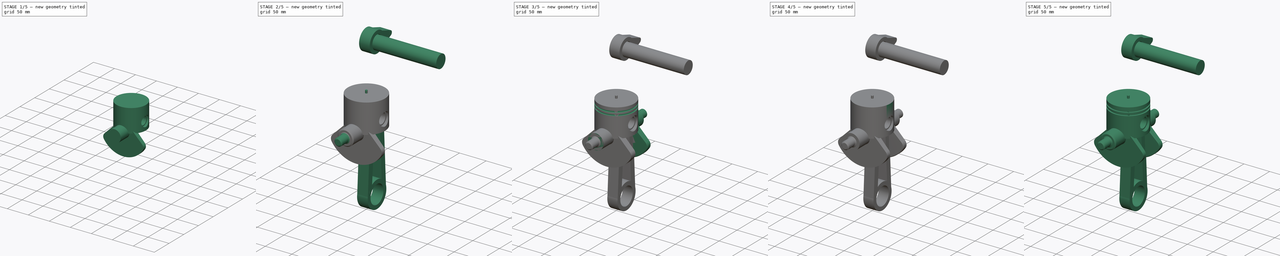
[diagram: build sequence overview — one tinted view per stage of 5, left to right]
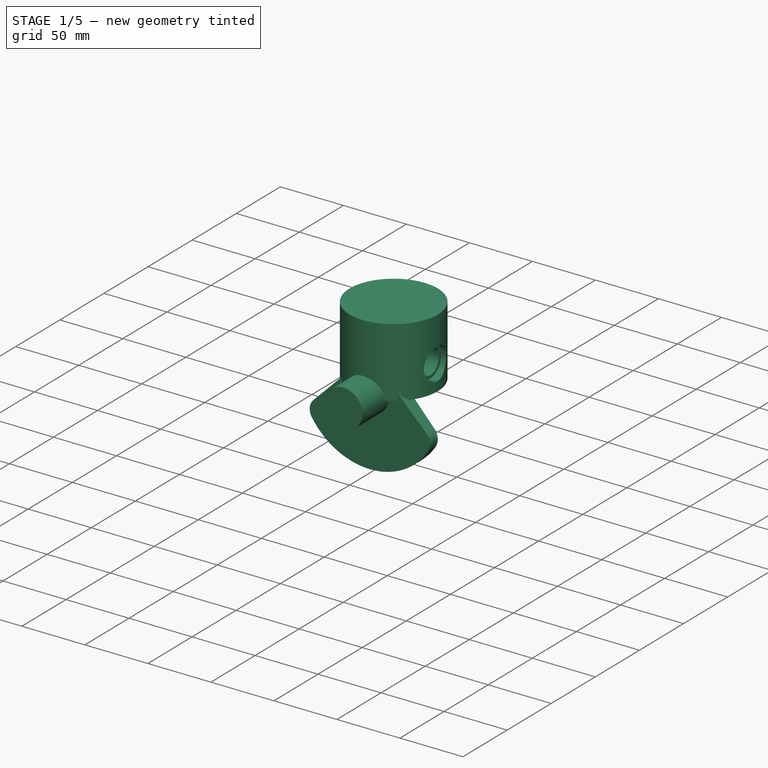
[diagram: stage 1 of 5 — iso view after this stage's code; geometry added in this stage tinted green]
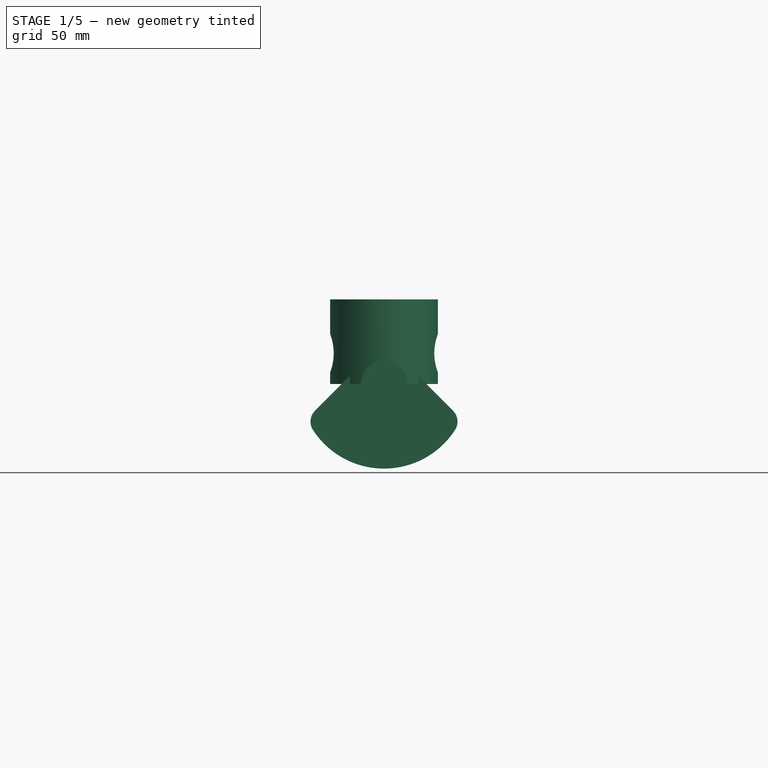
[diagram: stage 1 of 5 — front view after this stage's code; geometry added in this stage tinted green]
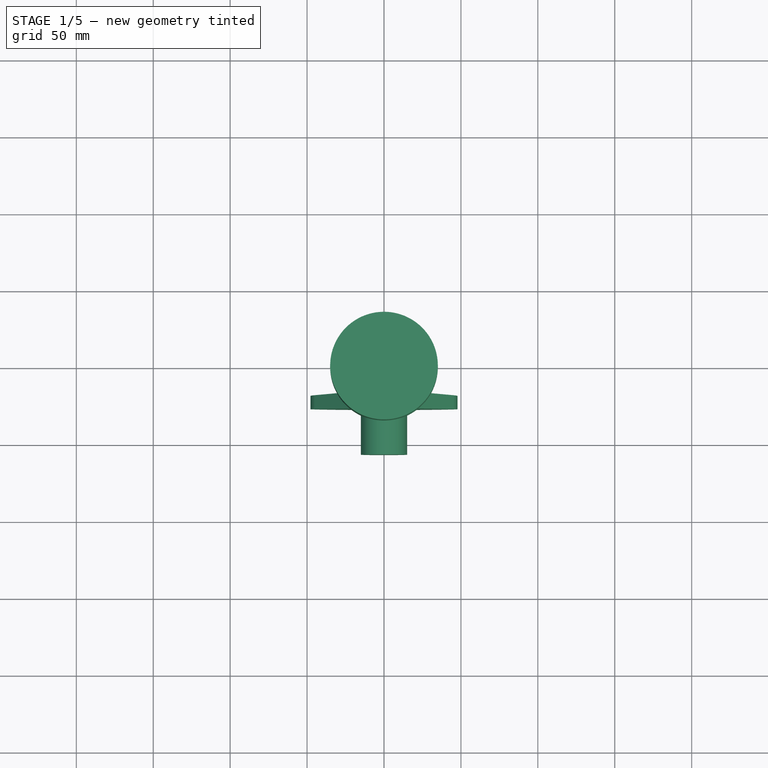
[diagram: stage 1 of 5 — top view after this stage's code; geometry added in this stage tinted green]
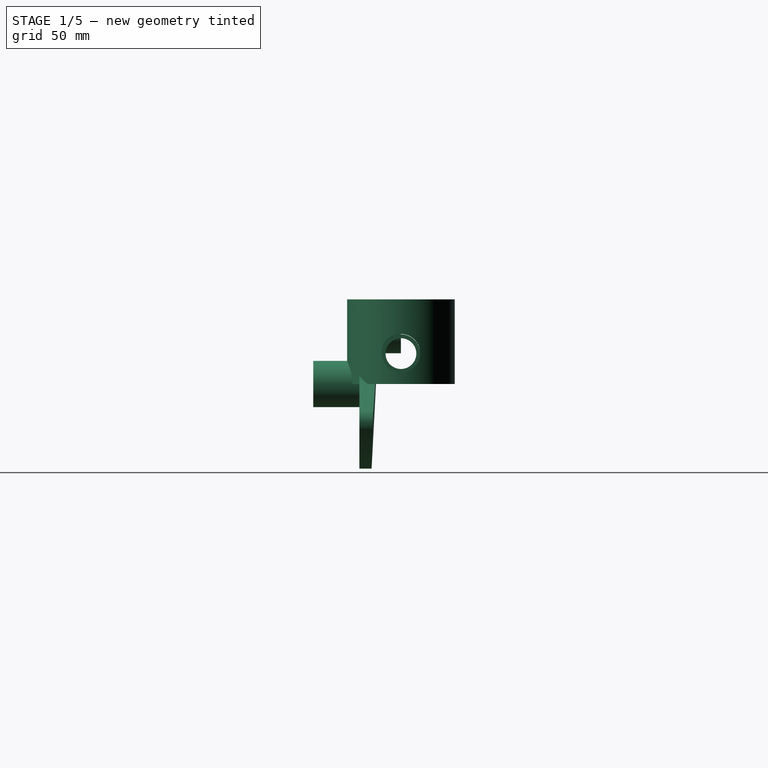
[diagram: stage 1 of 5 — right view after this stage's code; geometry added in this stage tinted green]
FCSTD DOCUMENT  (FreeCAD 0.21R33771 (Git))
Label: Machine Components Design_EngineCylinder
License: All rights reserved
LicenseURL: http://en.wikipedia.org/wiki/All_rights_reserved
objects: Sketcher::SketchObject×30, PartDesign::Pad×22, PartDesign::Body×14, PartDesign::Chamfer×8, PartDesign::Groove×6, PartDesign::Pocket×4, PartDesign::Fillet×4, App::Part×4, PartDesign::Revolution×2, PartDesign::Line×2, PartDesign::Mirrored×2
note: 140 computed .brp shape members not serialized (recipe doc carries the construction recipe); baked Part::Feature solids carry a one-line shape summary decoded from their .brp

FEATURE [PartDesign::Body] Body014
  Group = -> [Sketch032,Pad020,Sketch033,Pad021]
  Origin = -> Origin017
  Placement = pos=(0,0,60) rot=(0,0,1;0rad)
  Tip = -> Pad021
FEATURE [App::Part] Part003
  Group = -> [Body013,Body014,Body011,Body012]
  Origin = -> Origin018
FEATURE [App::Part] Part002
  Group = -> [Body008,Body009,Body010,Part003]
  Origin = -> Origin013
  Placement = pos=(110,0,0) rot=(0,0,1;0rad)
FEATURE [Sketcher::SketchObject] Sketch034
  FullyConstrained = true
  MapMode = 5
  Placement = pos=(0,0,0) rot=(1,0,0;1.5708rad)
  Support = -> [XZ_Plane019]
  sketch-geometry (6):
    g0: LineSegment StartX=0 StartY=55 StartZ=0 EndX=0 EndY=45 EndZ=0
    g1: LineSegment StartX=0 StartY=45 StartZ=0 EndX=25 EndY=45 EndZ=0
    g2: LineSegment StartX=25 StartY=45 StartZ=0 EndX=25 EndY=0 EndZ=0
    g3: LineSegment StartX=25 StartY=0 StartZ=0 EndX=35 EndY=0 EndZ=0
    g4: LineSegment StartX=35 StartY=0 StartZ=0 EndX=35 EndY=55 EndZ=0
    g5: LineSegment StartX=35 StartY=55 StartZ=0 EndX=0 EndY=55 EndZ=0
  constraints (18):
    c: Vertical(g0)
    c: Coincident(g0,g1)
    c: Horizontal(g1)
    c: Coincident(g1,g2)
    c: Vertical(g2)
    c: Coincident(g2,g3)
    c: Horizontal(g3)
    c: Coincident(g3,g4)
    c: Vertical(g4)
    c: Coincident(g4,g5)
    c: Coincident(g5,g0)
    c: Horizontal(g5)
    c: PointOnObject(g0,g-2)
    c: PointOnObject(g2,g-1)
    c: Distance(g2,g3) = 10
    c: Distance(g0,g0) = 10
    c: Distance(g-1,g3) = 35
    c: Distance(g0,g-1) = 55
FEATURE [PartDesign::Revolution] Revolution002
  Angle = 360
  Axis = (0,2e-16,1)
  Base = (0,0,0)
  Placement = pos=(0,0,0) rot=(1,0,0;1.5708rad)
  Profile = -> Sketch034
  ReferenceAxis = -> Sketch034 [V_Axis]
  Reversed = true
FEATURE [Sketcher::SketchObject] Sketch035
  FullyConstrained = true
  MapMode = 5
  Placement = pos=(0,0,0) rot=(0.57735,0.57735,0.57735;2.0944rad)
  Support = -> [YZ_Plane019]
  sketch-geometry (1):
    g0: Circle CenterX=0 CenterY=20 CenterZ=0 NormalX=0 NormalY=0 NormalZ=1 AngleXU=0 Radius=12.5
  constraints (3):
    c: PointOnObject(g0,g-2)
    c: Diameter(g0) = 25
    c: Distance(g0,g-1) = 20
FEATURE [PartDesign::Pocket] Pocket004
  BaseFeature = -> Revolution002
  Direction = (-1,2e-16,-3e-16)
  Length = 86
  Length2 = 5
  Midplane = true
  Placement = pos=(0,0,0) rot=(1,0,0;1.5708rad)
  Profile = -> Sketch035
  ReferenceAxis = -> Sketch035 [N_Axis]
  Type = 0
FEATURE [Sketcher::SketchObject] Sketch037
  FullyConstrained = false
  MapMode = 5
  Placement = pos=(0,0,0) rot=(0.57735,0.57735,0.57735;2.0944rad)
  Support = -> [YZ_Plane019]
  sketch-geometry (2):
    g0: Circle CenterX=0 CenterY=19.761 CenterZ=0 NormalX=0 NormalY=0 NormalZ=1 AngleXU=0 Radius=12.5
    g1: Circle CenterX=0 CenterY=19.761 CenterZ=0 NormalX=0 NormalY=0 NormalZ=1 AngleXU=0 Radius=10
  constraints (4):
    c: PointOnObject(g0,g-2)
    c: Coincident(g1,g0)
    c: Diameter(g0) = 25
    c: Diameter(g1) = 20
FEATURE [PartDesign::Pad] Pad022
  BaseFeature = -> Pocket004
  Direction = (1,-2e-16,3e-16)
  Length = 58
  Length2 = 10
  Midplane = true
  Placement = pos=(0,0,0) rot=(1,0,0;1.5708rad)
  Profile = -> Sketch037
  ReferenceAxis = -> Sketch037 [N_Axis]
  Type = 0
FEATURE [PartDesign::Pocket] Pocket005
  BaseFeature = -> Pad022
  Direction = (-1,2e-16,-3e-16)
  Length = 28
  Length2 = 5
  Midplane = true
  Placement = pos=(0,0,0) rot=(1,0,0;1.5708rad)
  Profile = -> Sketch037
  ReferenceAxis = -> Sketch037 [N_Axis]
  Type = 0
FEATURE [PartDesign::Body] Body016
  Group = -> [Sketch040,Pad023]
  Origin = -> Origin020
  Placement = pos=(-10,0,0) rot=(0,0,1;0rad)
  Tip = -> Pad023
FEATURE [Sketcher::SketchObject] Sketch041
  FullyConstrained = true
  MapMode = 5
  Placement = pos=(0,0,0) rot=(1,0,0;1.5708rad)
  Support = -> [XZ_Plane021]
  sketch-geometry (1):
    g0: Circle CenterX=0 CenterY=35 CenterZ=0 NormalX=0 NormalY=0 NormalZ=1 AngleXU=0 Radius=15
  constraints (3):
    c: PointOnObject(g0,g-2)
    c: Diameter(g0) = 30
    c: Distance(g0,g-1) = 35
FEATURE [PartDesign::Pad] Pad024
  Direction = (0,-1,-2e-16)
  Length = 15
  Length2 = 10
  Placement = pos=(0,0,0) rot=(1,0,0;1.5708rad)
  Profile = -> Sketch041
  ReferenceAxis = -> Sketch041 [N_Axis]
  Type = 0
FEATURE [Sketcher::SketchObject] Sketch042
  FullyConstrained = false
  MapMode = 5
  Placement = pos=(0,-15,0) rot=(1,0,0;1.5708rad)
  Support = -> [Pad024]
  sketch-geometry (6):
    g0: ArcOfCircle CenterX=0 CenterY=0 CenterZ=0 NormalX=0 NormalY=0 NormalZ=1 AngleXU=0 Radius=55 StartAngle=3.56562 EndAngle=5.85915
    g1: LineSegment StartX=-20 StartY=7.5 StartZ=0 EndX=-50.1291 EndY=-22.6291 EndZ=0
    g2: LineSegment StartX=-20 StartY=51.2348 StartZ=0 EndX=-20 EndY=7.5 EndZ=0
    g3: LineSegment StartX=20 StartY=51.2348 StartZ=0 EndX=20 EndY=7.5 EndZ=0
    g4: LineSegment StartX=20 StartY=7.5 StartZ=0 EndX=50.1291 EndY=-22.6291 EndZ=0
    g5: ArcOfCircle CenterX=0 CenterY=0 CenterZ=0 NormalX=0 NormalY=0 NormalZ=1 AngleXU=0 Radius=55 StartAngle=1.19863 EndAngle=1.94296
  constraints (12):
    c: Coincident(g0,g-1)
    c: Vertical(g2)
    c: Angle(g1,g-2) = 0.785398
    c: Vertical(g3)
    c: Coincident(g5,g2)
    c: Coincident(g1,g0)
    c: Equal(g0,g5)
    c: Coincident(g0,g4)
    c: Coincident(g5,g3)
    c: Coincident(g0,g5)
    c: Coincident(g2,g1)
    c: Coincident(g3,g4)
FEATURE [PartDesign::Pad] Pad025
  BaseFeature = -> Pad024
  Direction = (0,-1,-2e-16)
  Length = 12
  Length2 = 10
  Placement = pos=(0,0,0) rot=(1,0,0;1.5708rad)
  Profile = -> Sketch042
  ReferenceAxis = -> Sketch042 [N_Axis]
  Type = 0
FEATURE [PartDesign::Fillet] Fillet004
  Base = -> Pad025 [Edge8,Edge2,Edge1,Edge5,Edge18,Edge19]
  BaseFeature = -> Pad025
  Placement = pos=(0,0,0) rot=(1,0,0;1.5708rad)
  Radius = 10
  SupportTransform = false
  UseAllEdges = false
FEATURE [Sketcher::SketchObject] Sketch036
  FullyConstrained = true
  MapMode = 5
  Placement = pos=(0,-27,3e-16) rot=(1,0,0;1.5708rad)
  Support = -> [Fillet004]
  sketch-geometry (1):
    g0: Circle CenterX=0 CenterY=0 CenterZ=0 NormalX=0 NormalY=0 NormalZ=1 AngleXU=0 Radius=15
  constraints (2):
    c: Coincident(g0,g-1)
    c: Diameter(g0) = 30
FEATURE [PartDesign::Pad] Pad026
  BaseFeature = -> Fillet004
  Direction = (0,-1,-2e-16)
  Length = 30
  Length2 = 10
  Placement = pos=(0,0,0) rot=(1,0,0;1.5708rad)
  Profile = -> Sketch036
  ReferenceAxis = -> Sketch036 [N_Axis]
  Type = 0
FEATURE [PartDesign::Groove] Groove007
  Angle = 360
  Axis = (-2e-16,3e-16,1)
  Base = (0,0,0)
  BaseFeature = -> Pad026
  Placement = pos=(0,0,0) rot=(1,0,0;1.5708rad)
  Profile = -> Sketch038
  ReferenceAxis = -> Sketch038 [V_Axis]
  Reversed = true
FEATURE [PartDesign::Line] DatumLine002
  AttacherType = Attacher::AttachEngineLine
  Length = 20
  MapMode = 42
  Placement = pos=(-1.8e-15,1e-16,35) rot=(0,0.707107,0.707107;3.14159rad)
  ResizeMode = 0
  Support = -> [Groove007]
FEATURE [PartDesign::Groove] Groove008
  Angle = 360
  Axis = (0,1,2e-16)
  Base = (-1.8e-15,-7.8e-15,35)
  BaseFeature = -> Groove007
  Placement = pos=(0,0,0) rot=(1,0,0;1.5708rad)
  Profile = -> Sketch038
  ReferenceAxis = -> DatumLine002
  Reversed = true
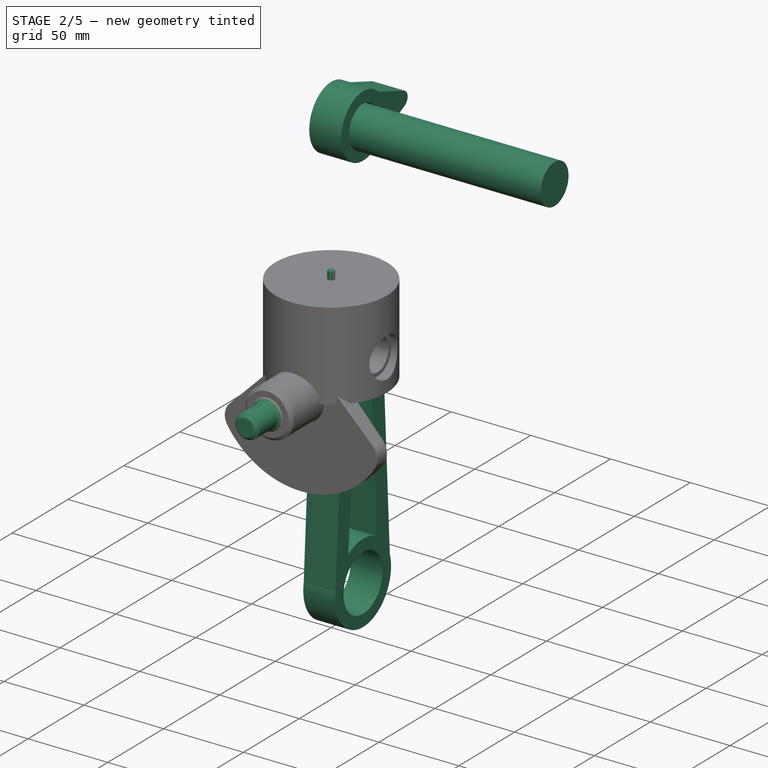
[diagram: stage 2 of 5 — iso view after this stage's code; geometry added in this stage tinted green]
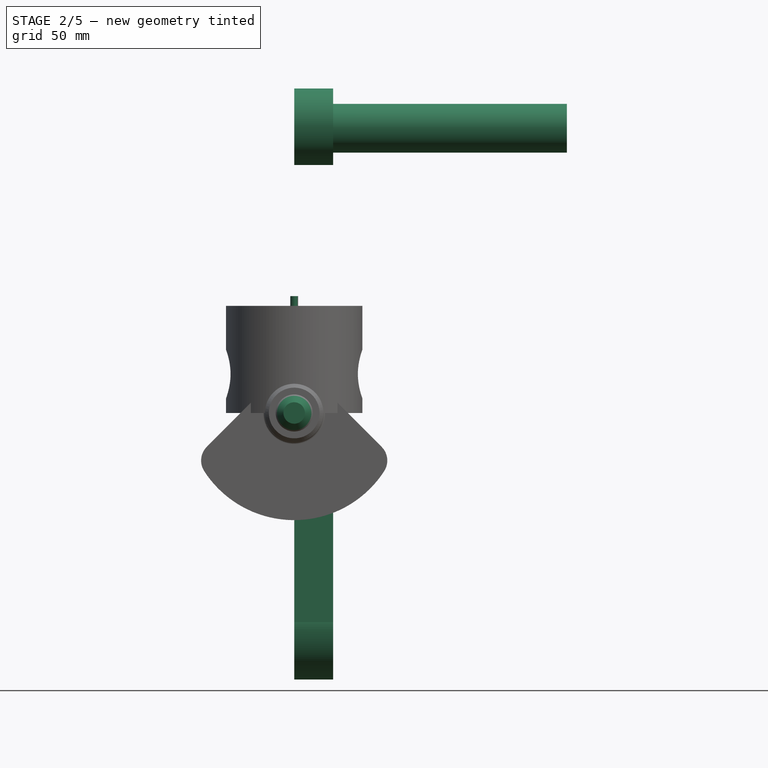
[diagram: stage 2 of 5 — front view after this stage's code; geometry added in this stage tinted green]
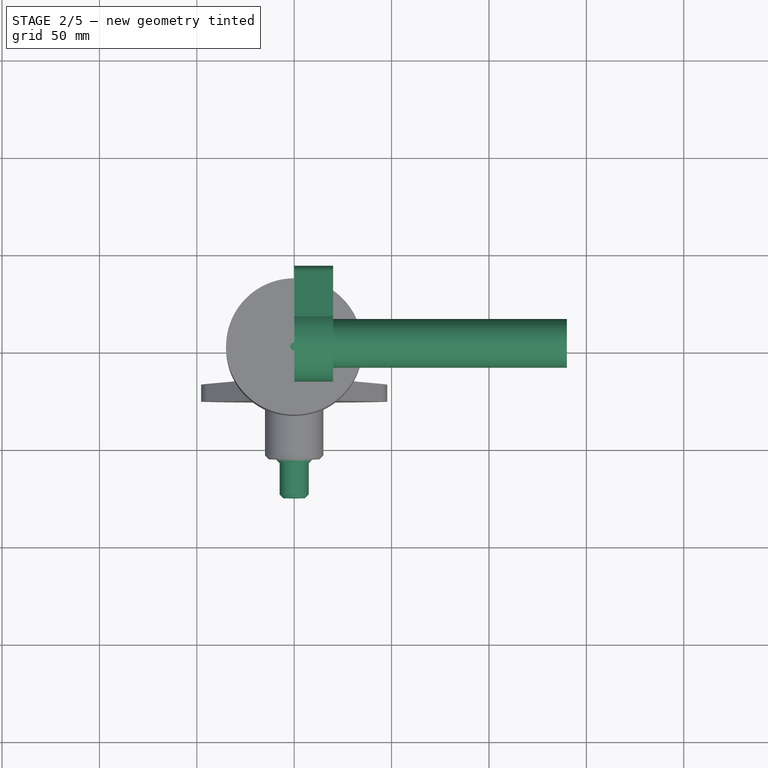
[diagram: stage 2 of 5 — top view after this stage's code; geometry added in this stage tinted green]
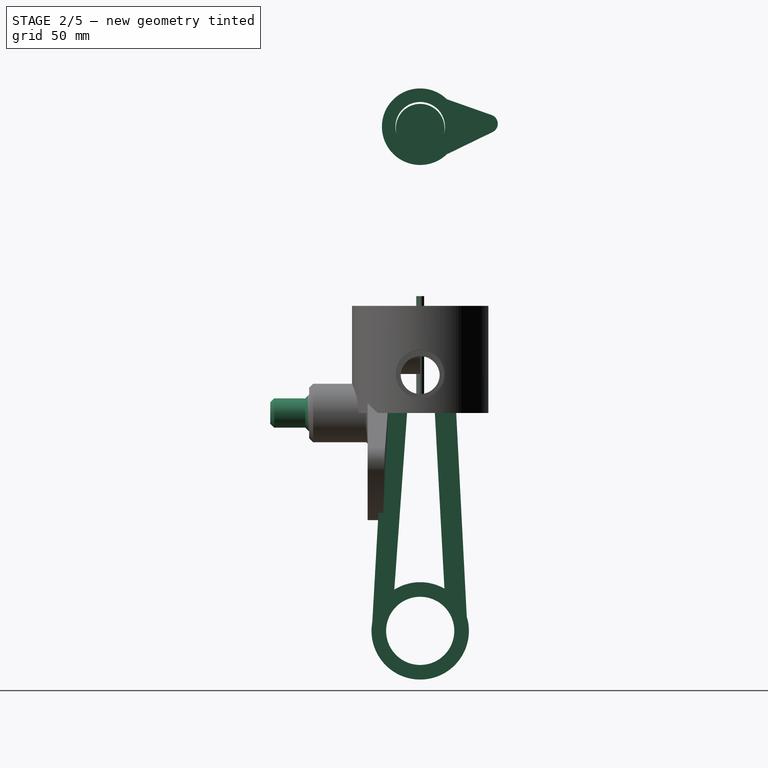
[diagram: stage 2 of 5 — right view after this stage's code; geometry added in this stage tinted green]
FEATURE [PartDesign::Body] Body015
  Group = -> [Sketch034,Revolution002,Sketch035,Pocket004,Sketch037,Pad022,Pocket005,Sketch039,Groove006,Chamfer009,Chamfer010]
  Origin = -> Origin019
  Tip = -> Chamfer010
FEATURE [Sketcher::SketchObject] Sketch040
  FullyConstrained = false
  MapMode = 5
  Placement = pos=(0,0,0) rot=(0.57735,0.57735,0.57735;2.0944rad)
  Support = -> [YZ_Plane020]
  sketch-geometry (10):
    g0: ArcOfCircle CenterX=0 CenterY=19.1543 CenterZ=0 NormalX=0 NormalY=0 NormalZ=1 AngleXU=0 Radius=17.5 StartAngle=0.000699235 EndAngle=3.17195
    g1: Circle CenterX=0 CenterY=19.1543 CenterZ=0 NormalX=0 NormalY=0 NormalZ=1 AngleXU=0 Radius=10
    g2: ArcOfCircle CenterX=0 CenterY=-111.866 CenterZ=0 NormalX=0 NormalY=0 NormalZ=1 AngleXU=0 Radius=25 StartAngle=1.05007 EndAngle=2.13152
    g3: Circle CenterX=0 CenterY=-111.866 CenterZ=0 NormalX=0 NormalY=0 NormalZ=1 AngleXU=0 Radius=17.5
    g4: LineSegment StartX=-17.4919 StartY=18.6231 StartZ=0 EndX=-24.585 EndY=-107.329 EndZ=0
    g5: LineSegment StartX=17.5 StartY=19.1665 StartZ=0 EndX=23.9052 EndY=-104.548 EndZ=0
    g6: LineSegment StartX=-6.51681 StartY=2.91297 StartZ=0 EndX=-13.2949 EndY=-90.6938 EndZ=0
    g7: LineSegment StartX=7.35161 StartY=3.27338 StartZ=0 EndX=12.4377 EndY=-90.1791 EndZ=0
    g8: ArcOfCircle CenterX=0 CenterY=19.1543 CenterZ=0 NormalX=0 NormalY=0 NormalZ=1 AngleXU=0 Radius=17.5 StartAngle=4.33081 EndAngle=5.14594
    g9: ArcOfCircle CenterX=0 CenterY=-111.866 CenterZ=0 NormalX=0 NormalY=0 NormalZ=1 AngleXU=0 Radius=25 StartAngle=2.95912 EndAngle=6.58022
  constraints (20):
    c: PointOnObject(g0,g-2)
    c: Coincident(g1,g0)
    c: PointOnObject(g2,g-2)
    c: Coincident(g3,g2)
    c: Diameter(g1) = 20
    c: Diameter(g0) = 35
    c: Diameter(g3) = 35
    c: Diameter(g2) = 50
    c: Coincident(g8,g7)
    c: Coincident(g0,g5)
    c: Equal(g0,g8)
    c: Coincident(g0,g4)
    c: Coincident(g8,g6)
    c: Coincident(g0,g8)
    c: Coincident(g9,g5)
    c: Coincident(g2,g7)
    c: Equal(g2,g9)
    c: Coincident(g2,g6)
    c: Coincident(g9,g4)
    c: Coincident(g2,g9)
FEATURE [PartDesign::Pad] Pad023
  Direction = (1,-2e-16,3e-16)
  Length = 20
  Length2 = 10
  Placement = pos=(0,0,0) rot=(0.57735,0.57735,0.57735;2.0944rad)
  Profile = -> Sketch040
  ReferenceAxis = -> Sketch040 [N_Axis]
  Type = 0
FEATURE [Sketcher::SketchObject] Sketch043
  FullyConstrained = true
  MapMode = 5
  Placement = pos=(0,-57,-2.7e-15) rot=(1,0,0;1.5708rad)
  Support = -> [Groove008]
  sketch-geometry (1):
    g0: Circle CenterX=0 CenterY=0 CenterZ=0 NormalX=0 NormalY=0 NormalZ=1 AngleXU=0 Radius=7.5
  constraints (2):
    c: Coincident(g0,g-1)
    c: Diameter(g0) = 15
FEATURE [PartDesign::Pad] Pad027
  BaseFeature = -> Groove008
  Direction = (0,-1,-2e-16)
  Length = 20
  Length2 = 10
  Placement = pos=(0,0,0) rot=(1,0,0;1.5708rad)
  Profile = -> Sketch043
  ReferenceAxis = -> Sketch043 [N_Axis]
  Type = 0
FEATURE [PartDesign::Fillet] Fillet005
  Base = -> Pad027 [Edge31]
  BaseFeature = -> Pad027
  Placement = pos=(0,0,0) rot=(1,0,0;1.5708rad)
  Radius = 1
  SupportTransform = false
  UseAllEdges = false
FEATURE [PartDesign::Chamfer] Chamfer011
  Angle = 45
  Base = -> Fillet005 [Edge42,Edge45,Edge51]
  BaseFeature = -> Fillet005
  ChamferType = 0
  FlipDirection = false
  Placement = pos=(0,0,0) rot=(1,0,0;1.5708rad)
  Size = 2
  Size2 = 1
  SupportTransform = false
  UseAllEdges = false
FEATURE [PartDesign::Body] Body017
  Group = -> [Sketch041,Pad024,Sketch042,Pad025,Fillet004,Sketch036,Pad026,Sketch038,Groove007,DatumLine002,Groove008,Sketch043,Pad027,Fillet005,Chamfer011,Chamfer012,Mirrored002]
  Origin = -> Origin021
  Placement = pos=(-2.9e-14,0,-150) rot=(0,0,-1;1.5708rad)
  Tip = -> Mirrored002
FEATURE [Sketcher::SketchObject] Sketch044
  FullyConstrained = false
  MapMode = 5
  Placement = pos=(0,0,0) rot=(0.57735,0.57735,0.57735;2.0944rad)
  Support = -> [YZ_Plane023]
  sketch-geometry (1):
    g0: Circle CenterX=0 CenterY=146.188 CenterZ=0 NormalX=0 NormalY=0 NormalZ=1 AngleXU=0 Radius=12.5
  constraints (1):
    c: Diameter(g0) = 25
FEATURE [PartDesign::Pad] Pad028
  Direction = (1,-2e-16,3e-16)
  Length = 140
  Length2 = 10
  Placement = pos=(0,0,0) rot=(0.57735,0.57735,0.57735;2.0944rad)
  Profile = -> Sketch044
  ReferenceAxis = -> Sketch044 [N_Axis]
  Type = 0
FEATURE [PartDesign::Body] Body018
  Group = -> [Sketch044,Pad028]
  Origin = -> Origin023
  Placement = pos=(-70,0,0) rot=(0,0,1;0rad)
  Tip = -> Pad028
FEATURE [Sketcher::SketchObject] Sketch045
  FullyConstrained = false
  MapMode = 5
  Placement = pos=(0,0,0) rot=(0.57735,0.57735,0.57735;2.0944rad)
  Support = -> [YZ_Plane024]
  sketch-geometry (5):
    g0: Circle CenterX=0 CenterY=146.953 CenterZ=0 NormalX=0 NormalY=0 NormalZ=1 AngleXU=0 Radius=12.7142
    g1: ArcOfCircle CenterX=0 CenterY=146.978 CenterZ=0 NormalX=0 NormalY=0 NormalZ=1 AngleXU=0 Radius=19.6527 StartAngle=0.801394 EndAngle=5.47571
    g2: ArcOfCircle CenterX=35.0826 CenterY=148.499 CenterZ=0 NormalX=0 NormalY=0 NormalZ=1 AngleXU=0 Radius=4.75282 StartAngle=5.16439 EndAngle=7.51469
    g3: LineSegment StartX=13.6725 StartY=161.095 StartZ=0 EndX=36.6645 EndY=152.98 EndZ=0
    g4: LineSegment StartX=13.5864 StartY=132.778 StartZ=0 EndX=37.1585 EndY=144.223 EndZ=0
  constraints (6):
    c: PointOnObject(g0,g-2)
    c: PointOnObject(g1,g-2)
    c: Coincident(g1,g4)
    c: Coincident(g1,g3)
    c: Tangent(g3,g2) = 1.5708
    c: Tangent(g4,g2) = -1.5708
FEATURE [PartDesign::Pad] Pad029
  Direction = (1,-2e-16,3e-16)
  Length = 20
  Length2 = 10
  Placement = pos=(0,0,0) rot=(0.57735,0.57735,0.57735;2.0944rad)
  Profile = -> Sketch045
  ReferenceAxis = -> Sketch045 [N_Axis]
  Type = 0
FEATURE [PartDesign::Body] Body019
  Group = -> [Sketch045,Pad029]
  Origin = -> Origin024
  Placement = pos=(-10,0,0) rot=(0,0,1;0rad)
  Tip = -> Pad029
FEATURE [Sketcher::SketchObject] Sketch046
  FullyConstrained = true
  MapMode = 5
  Support = -> [XY_Plane025]
  sketch-geometry (1):
    g0: Circle CenterX=0 CenterY=0 CenterZ=0 NormalX=0 NormalY=0 NormalZ=1 AngleXU=0 Radius=35
  constraints (2):
    c: Coincident(g0,g-1)
    c: Diameter(g0) = 70
FEATURE [PartDesign::Pad] Pad030
  Direction = (0,0,1)
  Length = 5
  Length2 = 10
  Profile = -> Sketch046
  ReferenceAxis = -> Sketch046 [N_Axis]
  Type = 0
FEATURE [PartDesign::Body] Body020
  Group = -> [Sketch046,Pad030]
  Origin = -> Origin025
  Placement = pos=(0,0,120) rot=(0,0,1;0rad)
  Tip = -> Pad030
FEATURE [Sketcher::SketchObject] Sketch047
  FullyConstrained = false
  MapMode = 5
  Support = -> [XY_Plane026]
  sketch-geometry (1):
    g0: Circle CenterX=0 CenterY=0 CenterZ=0 NormalX=0 NormalY=0 NormalZ=1 AngleXU=0 Radius=7.62516
FEATURE [PartDesign::Pad] Pad031
  Direction = (0,0,1)
  Length = 1
  Length2 = 10
  Profile = -> Sketch047
  ReferenceAxis = -> Sketch047 [N_Axis]
  Type = 0
FEATURE [Sketcher::SketchObject] Sketch048
  FullyConstrained = true
  MapMode = 5
  Support = -> [XY_Plane026]
  sketch-geometry (1):
    g0: Circle CenterX=0 CenterY=0 CenterZ=0 NormalX=0 NormalY=0 NormalZ=1 AngleXU=0 Radius=2
  constraints (2):
    c: Coincident(g0,g-1)
    c: Diameter(g0) = 4
FEATURE [PartDesign::Pad] Pad032
  BaseFeature = -> Pad031
  Direction = (0,0,1)
  Length = 60
  Length2 = 10
  Profile = -> Sketch048
  ReferenceAxis = -> Sketch048 [N_Axis]
  Type = 0
FEATURE [PartDesign::Body] Body021
  Group = -> [Sketch047,Pad031,Sketch048,Pad032]
  Origin = -> Origin026
  Placement = pos=(0,0,60) rot=(0,0,1;0rad)
  Tip = -> Pad032
FEATURE [App::Part] Part005
  Group = -> [Body020,Body021,Body018,Body019]
  Origin = -> Origin027
FEATURE [App::Part] Part004
  Group = -> [Body015,Body016,Body017,Part005]
  Origin = -> Origin022
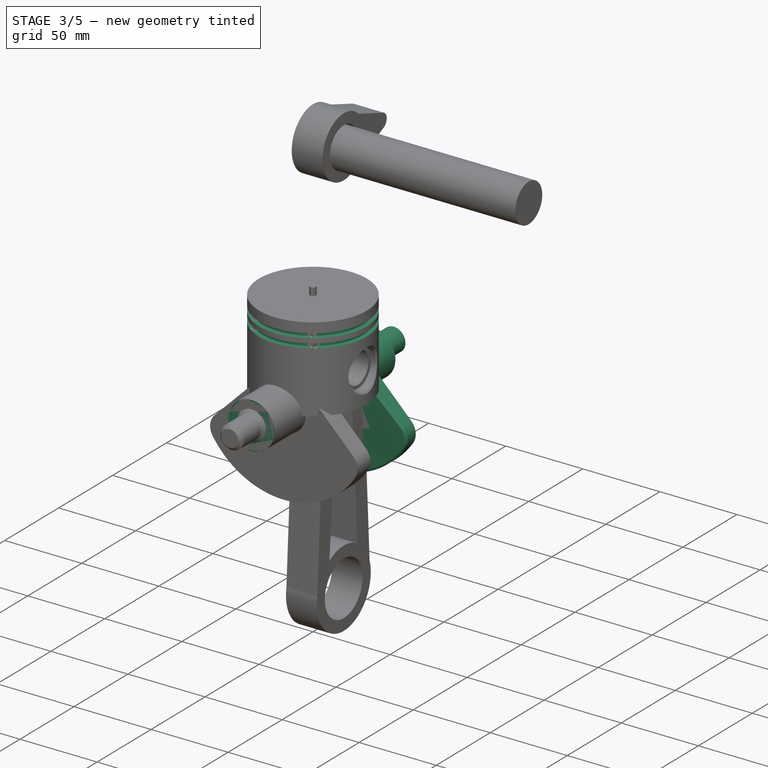
[diagram: stage 3 of 5 — iso view after this stage's code; geometry added in this stage tinted green]
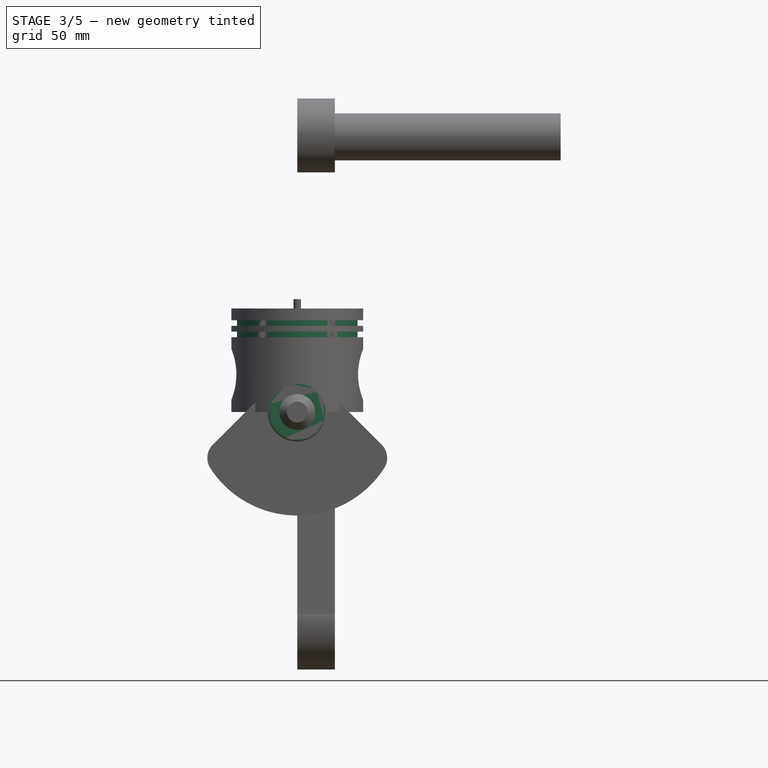
[diagram: stage 3 of 5 — front view after this stage's code; geometry added in this stage tinted green]
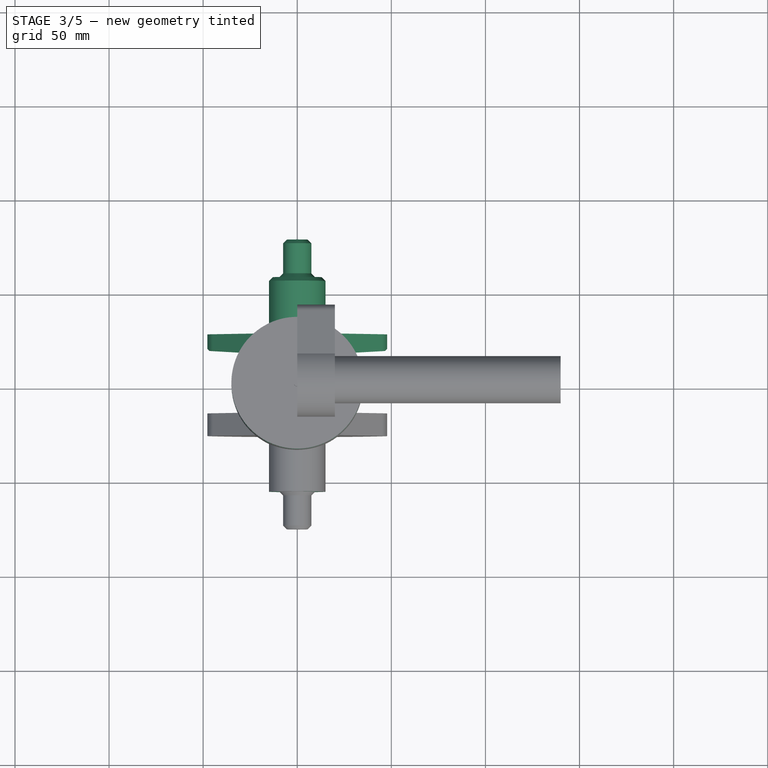
[diagram: stage 3 of 5 — top view after this stage's code; geometry added in this stage tinted green]
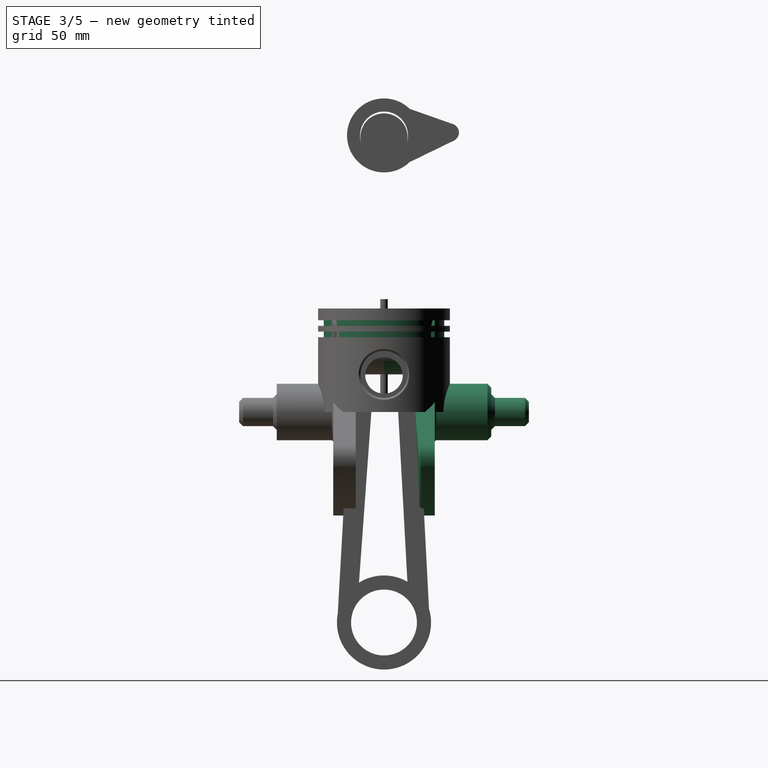
[diagram: stage 3 of 5 — right view after this stage's code; geometry added in this stage tinted green]
FEATURE [PartDesign::Body] Body009
  Group = -> [Sketch025,Pad012]
  Origin = -> Origin011
  Placement = pos=(-10,0,0) rot=(0,0,1;0rad)
  Tip = -> Pad012
FEATURE [Sketcher::SketchObject] Sketch026
  FullyConstrained = true
  MapMode = 5
  Placement = pos=(0,0,0) rot=(1,0,0;1.5708rad)
  Support = -> [XZ_Plane012]
  sketch-geometry (1):
    g0: Circle CenterX=0 CenterY=35 CenterZ=0 NormalX=0 NormalY=0 NormalZ=1 AngleXU=0 Radius=15
  constraints (3):
    c: PointOnObject(g0,g-2)
    c: Diameter(g0) = 30
    c: Distance(g0,g-1) = 35
FEATURE [PartDesign::Pad] Pad013
  Direction = (0,-1,-2e-16)
  Length = 15
  Length2 = 10
  Placement = pos=(0,0,0) rot=(1,0,0;1.5708rad)
  Profile = -> Sketch026
  ReferenceAxis = -> Sketch026 [N_Axis]
  Type = 0
FEATURE [Sketcher::SketchObject] Sketch027
  FullyConstrained = false
  MapMode = 5
  Placement = pos=(0,-15,0) rot=(1,0,0;1.5708rad)
  Support = -> [Pad013]
  sketch-geometry (6):
    g0: ArcOfCircle CenterX=0 CenterY=0 CenterZ=0 NormalX=0 NormalY=0 NormalZ=1 AngleXU=0 Radius=55 StartAngle=3.56562 EndAngle=5.85915
    g1: LineSegment StartX=-20 StartY=7.5 StartZ=0 EndX=-50.1291 EndY=-22.6291 EndZ=0
    g2: LineSegment StartX=-20 StartY=51.2348 StartZ=0 EndX=-20 EndY=7.5 EndZ=0
    g3: LineSegment StartX=20 StartY=51.2348 StartZ=0 EndX=20 EndY=7.5 EndZ=0
    g4: LineSegment StartX=20 StartY=7.5 StartZ=0 EndX=50.1291 EndY=-22.6291 EndZ=0
    g5: ArcOfCircle CenterX=0 CenterY=0 CenterZ=0 NormalX=0 NormalY=0 NormalZ=1 AngleXU=0 Radius=55 StartAngle=1.19863 EndAngle=1.94296
  constraints (12):
    c: Coincident(g0,g-1)
    c: Vertical(g2)
    c: Angle(g1,g-2) = 0.785398
    c: Vertical(g3)
    c: Coincident(g5,g2)
    c: Coincident(g1,g0)
    c: Equal(g0,g5)
    c: Coincident(g0,g4)
    c: Coincident(g5,g3)
    c: Coincident(g0,g5)
    c: Coincident(g2,g1)
    c: Coincident(g3,g4)
FEATURE [PartDesign::Pad] Pad014
  BaseFeature = -> Pad013
  Direction = (0,-1,-2e-16)
  Length = 12
  Length2 = 10
  Placement = pos=(0,0,0) rot=(1,0,0;1.5708rad)
  Profile = -> Sketch027
  ReferenceAxis = -> Sketch027 [N_Axis]
  Type = 0
FEATURE [PartDesign::Fillet] Fillet002
  Base = -> Pad014 [Edge8,Edge2,Edge1,Edge5,Edge18,Edge19]
  BaseFeature = -> Pad014
  Placement = pos=(0,0,0) rot=(1,0,0;1.5708rad)
  Radius = 10
  SupportTransform = false
  UseAllEdges = false
FEATURE [Sketcher::SketchObject] Sketch021
  FullyConstrained = true
  MapMode = 5
  Placement = pos=(0,-27,3e-16) rot=(1,0,0;1.5708rad)
  Support = -> [Fillet002]
  sketch-geometry (1):
    g0: Circle CenterX=0 CenterY=0 CenterZ=0 NormalX=0 NormalY=0 NormalZ=1 AngleXU=0 Radius=15
  constraints (2):
    c: Coincident(g0,g-1)
    c: Diameter(g0) = 30
FEATURE [PartDesign::Pad] Pad015
  BaseFeature = -> Fillet002
  Direction = (0,-1,-2e-16)
  Length = 30
  Length2 = 10
  Placement = pos=(0,0,0) rot=(1,0,0;1.5708rad)
  Profile = -> Sketch021
  ReferenceAxis = -> Sketch021 [N_Axis]
  Type = 0
FEATURE [PartDesign::Groove] Groove004
  Angle = 360
  Axis = (-2e-16,3e-16,1)
  Base = (0,0,0)
  BaseFeature = -> Pad015
  Placement = pos=(0,0,0) rot=(1,0,0;1.5708rad)
  Profile = -> Sketch023
  ReferenceAxis = -> Sketch023 [V_Axis]
  Reversed = true
FEATURE [Sketcher::SketchObject] Sketch038
  FullyConstrained = false
  MapMode = 5
  Placement = pos=(0,0,0) rot=(0.57735,0.57735,0.57735;2.0944rad)
  Support = -> [YZ_Plane021]
  sketch-geometry (3):
    g0: LineSegment StartX=-15 StartY=22.7208 StartZ=0 EndX=-15 EndY=-69.2292 EndZ=0
    g1: LineSegment StartX=-15 StartY=-69.2292 StartZ=0 EndX=-19.8189 EndY=-69.2292 EndZ=0
    g2: LineSegment StartX=-19.8189 StartY=-69.2292 StartZ=0 EndX=-15 EndY=22.7208 EndZ=0
  constraints (7):
    c: Vertical(g0)
    c: Coincident(g0,g1)
    c: Horizontal(g1)
    c: Coincident(g1,g2)
    c: Coincident(g2,g0)
    c: DistanceX(g0,g-1) = 15
    c: Angle(g2,g0) = 0.0523599
FEATURE [Sketcher::SketchObject] Sketch039
  FullyConstrained = true
  MapMode = 5
  Placement = pos=(0,0,0) rot=(1,0,0;1.5708rad)
  Support = -> [XZ_Plane019]
  sketch-geometry (8):
    g0: LineSegment StartX=32 StartY=42.73 StartZ=0 EndX=35 EndY=42.73 EndZ=0
    g1: LineSegment StartX=35 StartY=42.73 StartZ=0 EndX=35 EndY=39.73 EndZ=0
    g2: LineSegment StartX=35 StartY=39.73 StartZ=0 EndX=32 EndY=39.73 EndZ=0
    g3: LineSegment StartX=32 StartY=39.73 StartZ=0 EndX=32 EndY=42.73 EndZ=0
    g4: LineSegment StartX=32 StartY=48.74 StartZ=0 EndX=35 EndY=48.74 EndZ=0
    g5: LineSegment StartX=35 StartY=48.74 StartZ=0 EndX=35 EndY=45.74 EndZ=0
    g6: LineSegment StartX=35 StartY=45.74 StartZ=0 EndX=32 EndY=45.74 EndZ=0
    g7: LineSegment StartX=32 StartY=45.74 StartZ=0 EndX=32 EndY=48.74 EndZ=0
  constraints (24):
    c: Coincident(g0,g1)
    c: Coincident(g1,g2)
    c: Coincident(g2,g3)
    c: Coincident(g3,g0)
    c: Horizontal(g0)
    c: Horizontal(g2)
    c: Vertical(g1)
    c: Vertical(g3)
    c: Coincident(g4,g5)
    c: Coincident(g5,g6)
    c: Coincident(g6,g7)
    c: Coincident(g7,g4)
    c: Horizontal(g4)
    c: Horizontal(g6)
    c: Vertical(g5)
    c: Vertical(g7)
    c: Distance(g2,g1) = 3
    c: Distance(g0,g1) = 3
    c: Distance(g4,g4) = 3
    c: Distance(g4,g5) = 3
    c: Distance(g6,g-2) = 32
    c: Distance(g2,g-2) = 32
    c: Distance(g6,g-1) = 45.74
    c: Distance(g2,g-1) = 39.73
FEATURE [PartDesign::Groove] Groove006
  Angle = 360
  Axis = (0,-2e-16,1)
  Base = (0,0,0)
  BaseFeature = -> Pocket005
  Placement = pos=(0,0,0) rot=(1,0,0;1.5708rad)
  Profile = -> Sketch039
  ReferenceAxis = -> Sketch039 [V_Axis]
FEATURE [PartDesign::Chamfer] Chamfer009
  Angle = 45
  Base = -> Groove006 [Edge27]
  BaseFeature = -> Groove006
  ChamferType = 0
  FlipDirection = false
  Placement = pos=(0,0,0) rot=(1,0,0;1.5708rad)
  Size = 1
  Size2 = 1
  SupportTransform = false
  UseAllEdges = false
FEATURE [PartDesign::Chamfer] Chamfer010
  Angle = 45
  Base = -> Chamfer009 [Edge28,Edge31,Edge32]
  BaseFeature = -> Chamfer009
  ChamferType = 0
  FlipDirection = false
  Placement = pos=(0,0,0) rot=(1,0,0;1.5708rad)
  Size = 1
  Size2 = 1
  SupportTransform = false
  UseAllEdges = false
FEATURE [PartDesign::Chamfer] Chamfer012
  Angle = 45
  Base = -> Chamfer011 [Edge30]
  BaseFeature = -> Chamfer011
  ChamferType = 0
  FlipDirection = false
  Placement = pos=(0,0,0) rot=(1,0,0;1.5708rad)
  Size = 1
  Size2 = 1
  SupportTransform = false
  UseAllEdges = false
FEATURE [PartDesign::Mirrored] Mirrored002
  BaseFeature = -> Chamfer012
  MirrorPlane = -> Chamfer012 [Face36]
  Originals = -> [Pad024,Pad025,Fillet004,Pad026,Groove007,Groove008,Pad027,Fillet005,Chamfer011,Chamfer012]
  Placement = pos=(0,0,0) rot=(1,0,0;1.5708rad)
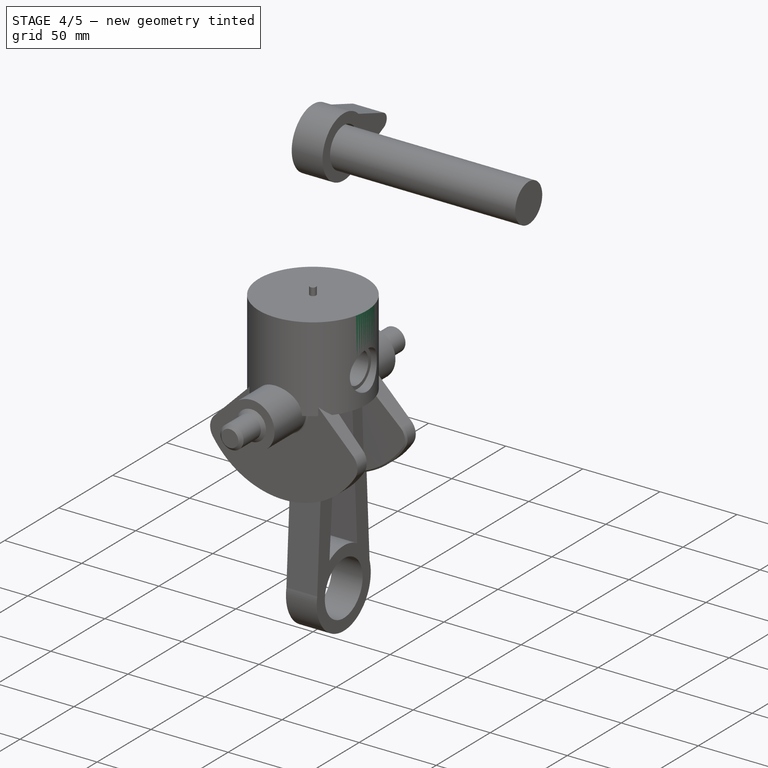
[diagram: stage 4 of 5 — iso view after this stage's code; geometry added in this stage tinted green]
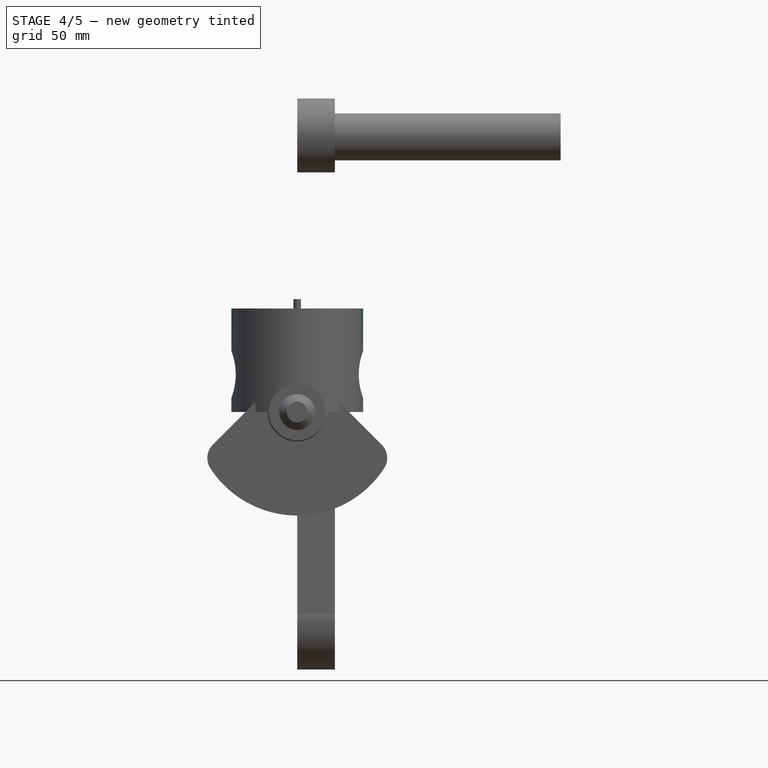
[diagram: stage 4 of 5 — front view after this stage's code; geometry added in this stage tinted green]
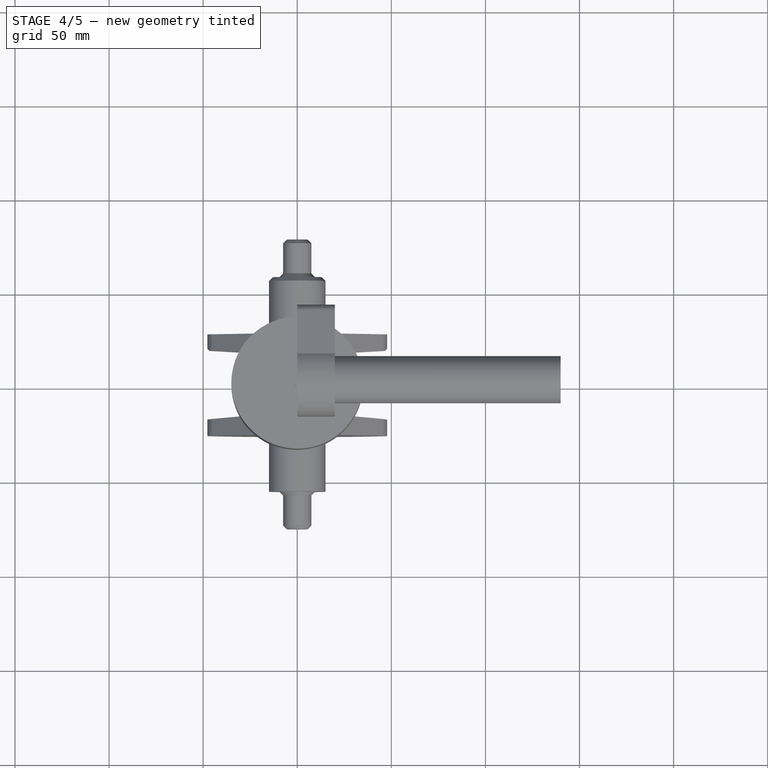
[diagram: stage 4 of 5 — top view after this stage's code; geometry added in this stage tinted green]
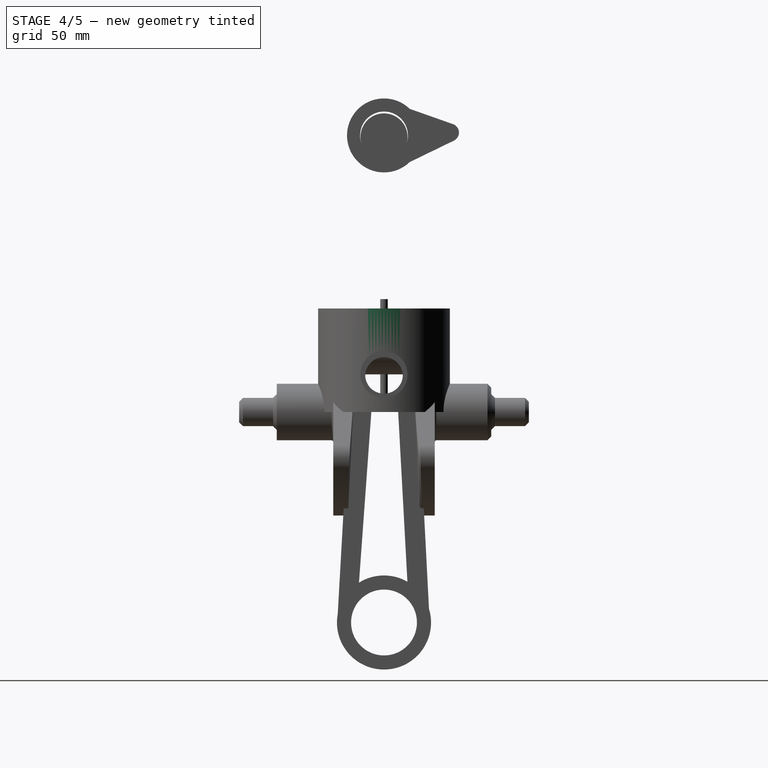
[diagram: stage 4 of 5 — right view after this stage's code; geometry added in this stage tinted green]
FEATURE [Sketcher::SketchObject] Sketch019
  FullyConstrained = true
  MapMode = 5
  Placement = pos=(0,0,0) rot=(1,0,0;1.5708rad)
  Support = -> [XZ_Plane010]
  sketch-geometry (6):
    g0: LineSegment StartX=0 StartY=55 StartZ=0 EndX=0 EndY=45 EndZ=0
    g1: LineSegment StartX=0 StartY=45 StartZ=0 EndX=25 EndY=45 EndZ=0
    g2: LineSegment StartX=25 StartY=45 StartZ=0 EndX=25 EndY=0 EndZ=0
    g3: LineSegment StartX=25 StartY=0 StartZ=0 EndX=35 EndY=0 EndZ=0
    g4: LineSegment StartX=35 StartY=0 StartZ=0 EndX=35 EndY=55 EndZ=0
    g5: LineSegment StartX=35 StartY=55 StartZ=0 EndX=0 EndY=55 EndZ=0
  constraints (18):
    c: Vertical(g0)
    c: Coincident(g0,g1)
    c: Horizontal(g1)
    c: Coincident(g1,g2)
    c: Vertical(g2)
    c: Coincident(g2,g3)
    c: Horizontal(g3)
    c: Coincident(g3,g4)
    c: Vertical(g4)
    c: Coincident(g4,g5)
    c: Coincident(g5,g0)
    c: Horizontal(g5)
    c: PointOnObject(g0,g-2)
    c: PointOnObject(g2,g-1)
    c: Distance(g2,g3) = 10
    c: Distance(g0,g0) = 10
    c: Distance(g-1,g3) = 35
    c: Distance(g0,g-1) = 55
FEATURE [PartDesign::Revolution] Revolution001
  Angle = 360
  Axis = (0,2e-16,1)
  Base = (0,0,0)
  Placement = pos=(0,0,0) rot=(1,0,0;1.5708rad)
  Profile = -> Sketch019
  ReferenceAxis = -> Sketch019 [V_Axis]
  Reversed = true
FEATURE [Sketcher::SketchObject] Sketch020
  FullyConstrained = true
  MapMode = 5
  Placement = pos=(0,0,0) rot=(0.57735,0.57735,0.57735;2.0944rad)
  Support = -> [YZ_Plane010]
  sketch-geometry (1):
    g0: Circle CenterX=0 CenterY=20 CenterZ=0 NormalX=0 NormalY=0 NormalZ=1 AngleXU=0 Radius=12.5
  constraints (3):
    c: PointOnObject(g0,g-2)
    c: Diameter(g0) = 25
    c: Distance(g0,g-1) = 20
FEATURE [PartDesign::Pocket] Pocket002
  BaseFeature = -> Revolution001
  Direction = (-1,2e-16,-3e-16)
  Length = 86
  Length2 = 5
  Midplane = true
  Placement = pos=(0,0,0) rot=(1,0,0;1.5708rad)
  Profile = -> Sketch020
  ReferenceAxis = -> Sketch020 [N_Axis]
  Type = 0
FEATURE [Sketcher::SketchObject] Sketch022
  FullyConstrained = false
  MapMode = 5
  Placement = pos=(0,0,0) rot=(0.57735,0.57735,0.57735;2.0944rad)
  Support = -> [YZ_Plane010]
  sketch-geometry (2):
    g0: Circle CenterX=0 CenterY=19.761 CenterZ=0 NormalX=0 NormalY=0 NormalZ=1 AngleXU=0 Radius=12.5
    g1: Circle CenterX=0 CenterY=19.761 CenterZ=0 NormalX=0 NormalY=0 NormalZ=1 AngleXU=0 Radius=10
  constraints (4):
    c: PointOnObject(g0,g-2)
    c: Coincident(g1,g0)
    c: Diameter(g0) = 25
    c: Diameter(g1) = 20
FEATURE [PartDesign::Pad] Pad011
  BaseFeature = -> Pocket002
  Direction = (1,-2e-16,3e-16)
  Length = 58
  Length2 = 10
  Midplane = true
  Placement = pos=(0,0,0) rot=(1,0,0;1.5708rad)
  Profile = -> Sketch022
  ReferenceAxis = -> Sketch022 [N_Axis]
  Type = 0
FEATURE [PartDesign::Pocket] Pocket003
  BaseFeature = -> Pad011
  Direction = (-1,2e-16,-3e-16)
  Length = 28
  Length2 = 5
  Midplane = true
  Placement = pos=(0,0,0) rot=(1,0,0;1.5708rad)
  Profile = -> Sketch022
  ReferenceAxis = -> Sketch022 [N_Axis]
  Type = 0
FEATURE [PartDesign::Line] DatumLine001
  AttacherType = Attacher::AttachEngineLine
  Length = 20
  MapMode = 42
  Placement = pos=(-1.8e-15,1e-16,35) rot=(0,0.707107,0.707107;3.14159rad)
  ResizeMode = 0
  Support = -> [Groove004]
FEATURE [PartDesign::Groove] Groove005
  Angle = 360
  Axis = (0,1,2e-16)
  Base = (-1.8e-15,-7.8e-15,35)
  BaseFeature = -> Groove004
  Placement = pos=(0,0,0) rot=(1,0,0;1.5708rad)
  Profile = -> Sketch023
  ReferenceAxis = -> DatumLine001
  Reversed = true
FEATURE [PartDesign::Body] Body011
  Group = -> [Sketch029,Pad017]
  Origin = -> Origin014
  Placement = pos=(-70,0,0) rot=(0,0,1;0rad)
  Tip = -> Pad017
FEATURE [Sketcher::SketchObject] Sketch030
  FullyConstrained = false
  MapMode = 5
  Placement = pos=(0,0,0) rot=(0.57735,0.57735,0.57735;2.0944rad)
  Support = -> [YZ_Plane015]
  sketch-geometry (5):
    g0: Circle CenterX=0 CenterY=146.953 CenterZ=0 NormalX=0 NormalY=0 NormalZ=1 AngleXU=0 Radius=12.7142
    g1: ArcOfCircle CenterX=0 CenterY=146.978 CenterZ=0 NormalX=0 NormalY=0 NormalZ=1 AngleXU=0 Radius=19.6527 StartAngle=0.801394 EndAngle=5.47571
    g2: ArcOfCircle CenterX=35.0826 CenterY=148.499 CenterZ=0 NormalX=0 NormalY=0 NormalZ=1 AngleXU=0 Radius=4.75282 StartAngle=5.16439 EndAngle=7.51469
    g3: LineSegment StartX=13.6725 StartY=161.095 StartZ=0 EndX=36.6645 EndY=152.98 EndZ=0
    g4: LineSegment StartX=13.5864 StartY=132.778 StartZ=0 EndX=37.1585 EndY=144.223 EndZ=0
  constraints (6):
    c: PointOnObject(g0,g-2)
    c: PointOnObject(g1,g-2)
    c: Coincident(g1,g4)
    c: Coincident(g1,g3)
    c: Tangent(g3,g2) = 1.5708
    c: Tangent(g4,g2) = -1.5708
FEATURE [PartDesign::Pad] Pad018
  Direction = (1,-2e-16,3e-16)
  Length = 20
  Length2 = 10
  Placement = pos=(0,0,0) rot=(0.57735,0.57735,0.57735;2.0944rad)
  Profile = -> Sketch030
  ReferenceAxis = -> Sketch030 [N_Axis]
  Type = 0
FEATURE [PartDesign::Body] Body012
  Group = -> [Sketch030,Pad018]
  Origin = -> Origin015
  Placement = pos=(-10,0,0) rot=(0,0,1;0rad)
  Tip = -> Pad018
FEATURE [Sketcher::SketchObject] Sketch031
  FullyConstrained = true
  MapMode = 5
  Support = -> [XY_Plane016]
  sketch-geometry (1):
    g0: Circle CenterX=0 CenterY=0 CenterZ=0 NormalX=0 NormalY=0 NormalZ=1 AngleXU=0 Radius=35
  constraints (2):
    c: Coincident(g0,g-1)
    c: Diameter(g0) = 70
FEATURE [PartDesign::Pad] Pad019
  Direction = (0,0,1)
  Length = 5
  Length2 = 10
  Profile = -> Sketch031
  ReferenceAxis = -> Sketch031 [N_Axis]
  Type = 0
FEATURE [PartDesign::Body] Body013
  Group = -> [Sketch031,Pad019]
  Origin = -> Origin016
  Placement = pos=(0,0,120) rot=(0,0,1;0rad)
  Tip = -> Pad019
FEATURE [Sketcher::SketchObject] Sketch032
  FullyConstrained = false
  MapMode = 5
  Support = -> [XY_Plane017]
  sketch-geometry (1):
    g0: Circle CenterX=0 CenterY=0 CenterZ=0 NormalX=0 NormalY=0 NormalZ=1 AngleXU=0 Radius=7.62516
FEATURE [PartDesign::Pad] Pad020
  Direction = (0,0,1)
  Length = 1
  Length2 = 10
  Profile = -> Sketch032
  ReferenceAxis = -> Sketch032 [N_Axis]
  Type = 0
FEATURE [Sketcher::SketchObject] Sketch033
  FullyConstrained = true
  MapMode = 5
  Support = -> [XY_Plane017]
  sketch-geometry (1):
    g0: Circle CenterX=0 CenterY=0 CenterZ=0 NormalX=0 NormalY=0 NormalZ=1 AngleXU=0 Radius=2
  constraints (2):
    c: Coincident(g0,g-1)
    c: Diameter(g0) = 4
FEATURE [PartDesign::Pad] Pad021
  BaseFeature = -> Pad020
  Direction = (0,0,1)
  Length = 60
  Length2 = 10
  Profile = -> Sketch033
  ReferenceAxis = -> Sketch033 [N_Axis]
  Type = 0
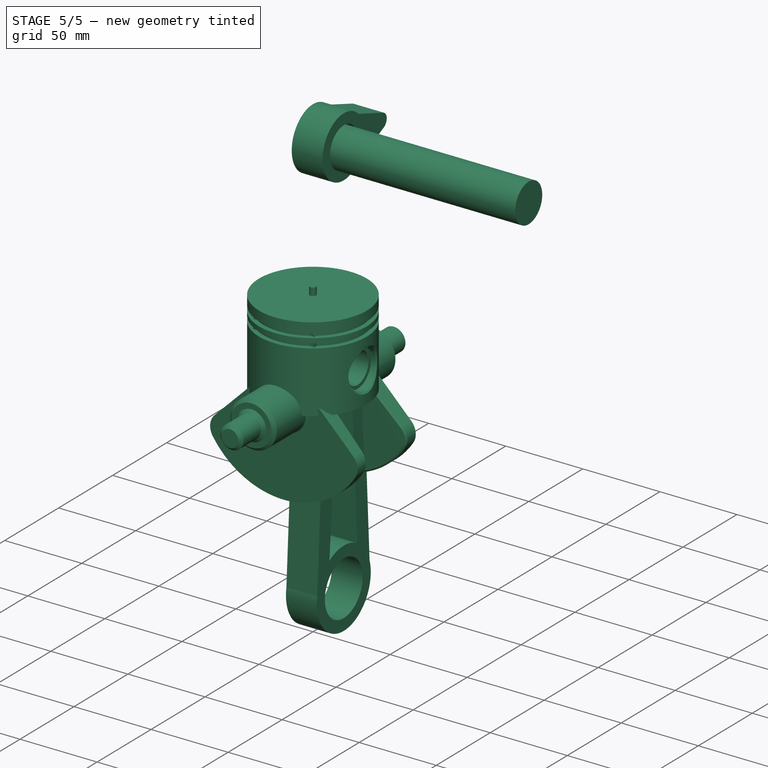
[diagram: stage 5 of 5 — iso view after this stage's code; geometry added in this stage tinted green]
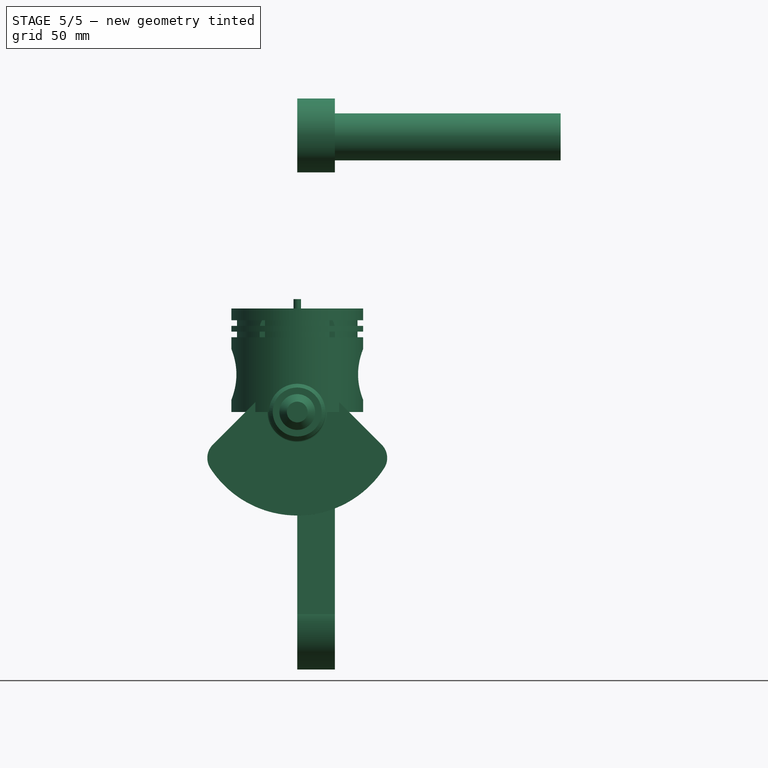
[diagram: stage 5 of 5 — front view after this stage's code; geometry added in this stage tinted green]
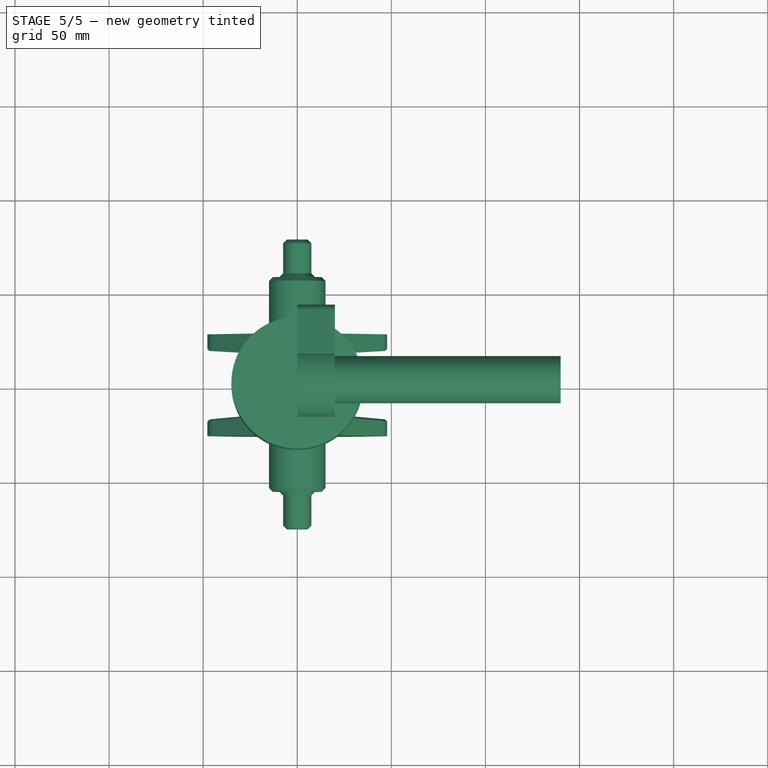
[diagram: stage 5 of 5 — top view after this stage's code; geometry added in this stage tinted green]
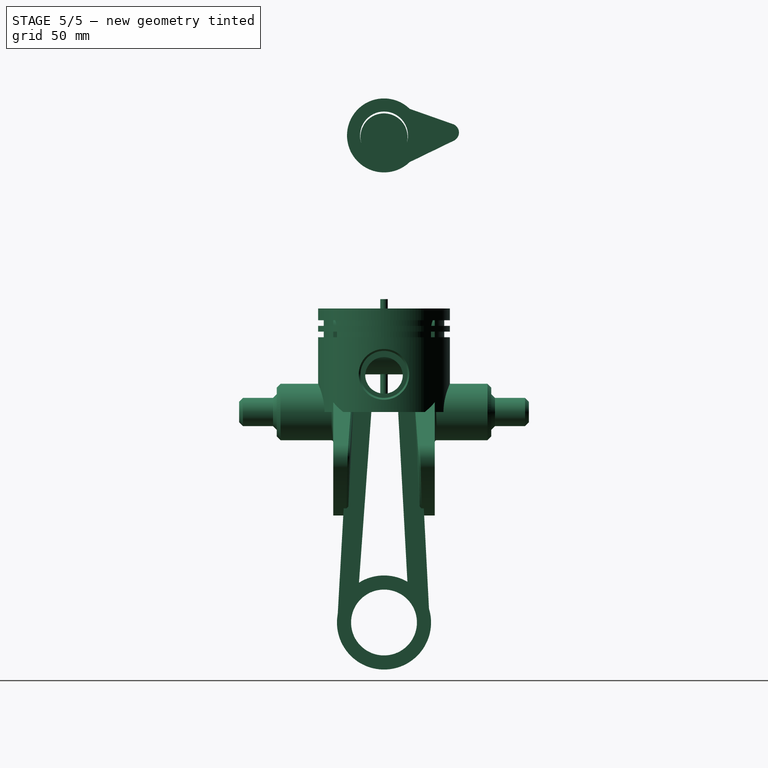
[diagram: stage 5 of 5 — right view after this stage's code; geometry added in this stage tinted green]
FEATURE [Sketcher::SketchObject] Sketch023
  FullyConstrained = false
  MapMode = 5
  Placement = pos=(0,0,0) rot=(0.57735,0.57735,0.57735;2.0944rad)
  Support = -> [YZ_Plane012]
  sketch-geometry (3):
    g0: LineSegment StartX=-15 StartY=22.7208 StartZ=0 EndX=-15 EndY=-69.2292 EndZ=0
    g1: LineSegment StartX=-15 StartY=-69.2292 StartZ=0 EndX=-19.8189 EndY=-69.2292 EndZ=0
    g2: LineSegment StartX=-19.8189 StartY=-69.2292 StartZ=0 EndX=-15 EndY=22.7208 EndZ=0
  constraints (7):
    c: Vertical(g0)
    c: Coincident(g0,g1)
    c: Horizontal(g1)
    c: Coincident(g1,g2)
    c: Coincident(g2,g0)
    c: DistanceX(g0,g-1) = 15
    c: Angle(g2,g0) = 0.0523599
FEATURE [Sketcher::SketchObject] Sketch024
  FullyConstrained = true
  MapMode = 5
  Placement = pos=(0,0,0) rot=(1,0,0;1.5708rad)
  Support = -> [XZ_Plane010]
  sketch-geometry (8):
    g0: LineSegment StartX=32 StartY=42.73 StartZ=0 EndX=35 EndY=42.73 EndZ=0
    g1: LineSegment StartX=35 StartY=42.73 StartZ=0 EndX=35 EndY=39.73 EndZ=0
    g2: LineSegment StartX=35 StartY=39.73 StartZ=0 EndX=32 EndY=39.73 EndZ=0
    g3: LineSegment StartX=32 StartY=39.73 StartZ=0 EndX=32 EndY=42.73 EndZ=0
    g4: LineSegment StartX=32 StartY=48.74 StartZ=0 EndX=35 EndY=48.74 EndZ=0
    g5: LineSegment StartX=35 StartY=48.74 StartZ=0 EndX=35 EndY=45.74 EndZ=0
    g6: LineSegment StartX=35 StartY=45.74 StartZ=0 EndX=32 EndY=45.74 EndZ=0
    g7: LineSegment StartX=32 StartY=45.74 StartZ=0 EndX=32 EndY=48.74 EndZ=0
  constraints (24):
    c: Coincident(g0,g1)
    c: Coincident(g1,g2)
    c: Coincident(g2,g3)
    c: Coincident(g3,g0)
    c: Horizontal(g0)
    c: Horizontal(g2)
    c: Vertical(g1)
    c: Vertical(g3)
    c: Coincident(g4,g5)
    c: Coincident(g5,g6)
    c: Coincident(g6,g7)
    c: Coincident(g7,g4)
    c: Horizontal(g4)
    c: Horizontal(g6)
    c: Vertical(g5)
    c: Vertical(g7)
    c: Distance(g2,g1) = 3
    c: Distance(g0,g1) = 3
    c: Distance(g4,g4) = 3
    c: Distance(g4,g5) = 3
    c: Distance(g6,g-2) = 32
    c: Distance(g2,g-2) = 32
    c: Distance(g6,g-1) = 45.74
    c: Distance(g2,g-1) = 39.73
FEATURE [PartDesign::Groove] Groove003
  Angle = 360
  Axis = (0,-2e-16,1)
  Base = (0,0,0)
  BaseFeature = -> Pocket003
  Placement = pos=(0,0,0) rot=(1,0,0;1.5708rad)
  Profile = -> Sketch024
  ReferenceAxis = -> Sketch024 [V_Axis]
FEATURE [PartDesign::Chamfer] Chamfer005
  Angle = 45
  Base = -> Groove003 [Edge27]
  BaseFeature = -> Groove003
  ChamferType = 0
  FlipDirection = false
  Placement = pos=(0,0,0) rot=(1,0,0;1.5708rad)
  Size = 1
  Size2 = 1
  SupportTransform = false
  UseAllEdges = false
FEATURE [PartDesign::Chamfer] Chamfer006
  Angle = 45
  Base = -> Chamfer005 [Edge28,Edge31,Edge32]
  BaseFeature = -> Chamfer005
  ChamferType = 0
  FlipDirection = false
  Placement = pos=(0,0,0) rot=(1,0,0;1.5708rad)
  Size = 1
  Size2 = 1
  SupportTransform = false
  UseAllEdges = false
FEATURE [PartDesign::Body] Body008
  Group = -> [Sketch019,Revolution001,Sketch020,Pocket002,Sketch022,Pad011,Pocket003,Sketch024,Groove003,Chamfer005,Chamfer006]
  Origin = -> Origin010
  Tip = -> Chamfer006
FEATURE [Sketcher::SketchObject] Sketch025
  FullyConstrained = false
  MapMode = 5
  Placement = pos=(0,0,0) rot=(0.57735,0.57735,0.57735;2.0944rad)
  Support = -> [YZ_Plane011]
  sketch-geometry (10):
    g0: ArcOfCircle CenterX=0 CenterY=19.1543 CenterZ=0 NormalX=0 NormalY=0 NormalZ=1 AngleXU=0 Radius=17.5 StartAngle=0.000699235 EndAngle=3.17195
    g1: Circle CenterX=0 CenterY=19.1543 CenterZ=0 NormalX=0 NormalY=0 NormalZ=1 AngleXU=0 Radius=10
    g2: ArcOfCircle CenterX=0 CenterY=-111.866 CenterZ=0 NormalX=0 NormalY=0 NormalZ=1 AngleXU=0 Radius=25 StartAngle=1.05007 EndAngle=2.13152
    g3: Circle CenterX=0 CenterY=-111.866 CenterZ=0 NormalX=0 NormalY=0 NormalZ=1 AngleXU=0 Radius=17.5
    g4: LineSegment StartX=-17.4919 StartY=18.6231 StartZ=0 EndX=-24.585 EndY=-107.329 EndZ=0
    g5: LineSegment StartX=17.5 StartY=19.1665 StartZ=0 EndX=23.9052 EndY=-104.548 EndZ=0
    g6: LineSegment StartX=-6.51681 StartY=2.91297 StartZ=0 EndX=-13.2949 EndY=-90.6938 EndZ=0
    g7: LineSegment StartX=7.35161 StartY=3.27338 StartZ=0 EndX=12.4377 EndY=-90.1791 EndZ=0
    g8: ArcOfCircle CenterX=0 CenterY=19.1543 CenterZ=0 NormalX=0 NormalY=0 NormalZ=1 AngleXU=0 Radius=17.5 StartAngle=4.33081 EndAngle=5.14594
    g9: ArcOfCircle CenterX=0 CenterY=-111.866 CenterZ=0 NormalX=0 NormalY=0 NormalZ=1 AngleXU=0 Radius=25 StartAngle=2.95912 EndAngle=6.58022
  constraints (20):
    c: PointOnObject(g0,g-2)
    c: Coincident(g1,g0)
    c: PointOnObject(g2,g-2)
    c: Coincident(g3,g2)
    c: Diameter(g1) = 20
    c: Diameter(g0) = 35
    c: Diameter(g3) = 35
    c: Diameter(g2) = 50
    c: Coincident(g8,g7)
    c: Coincident(g0,g5)
    c: Equal(g0,g8)
    c: Coincident(g0,g4)
    c: Coincident(g8,g6)
    c: Coincident(g0,g8)
    c: Coincident(g9,g5)
    c: Coincident(g2,g7)
    c: Equal(g2,g9)
    c: Coincident(g2,g6)
    c: Coincident(g9,g4)
    c: Coincident(g2,g9)
FEATURE [PartDesign::Pad] Pad012
  Direction = (1,-2e-16,3e-16)
  Length = 20
  Length2 = 10
  Placement = pos=(0,0,0) rot=(0.57735,0.57735,0.57735;2.0944rad)
  Profile = -> Sketch025
  ReferenceAxis = -> Sketch025 [N_Axis]
  Type = 0
FEATURE [Sketcher::SketchObject] Sketch028
  FullyConstrained = true
  MapMode = 5
  Placement = pos=(0,-57,-2.7e-15) rot=(1,0,0;1.5708rad)
  Support = -> [Groove005]
  sketch-geometry (1):
    g0: Circle CenterX=0 CenterY=0 CenterZ=0 NormalX=0 NormalY=0 NormalZ=1 AngleXU=0 Radius=7.5
  constraints (2):
    c: Coincident(g0,g-1)
    c: Diameter(g0) = 15
FEATURE [PartDesign::Pad] Pad016
  BaseFeature = -> Groove005
  Direction = (0,-1,-2e-16)
  Length = 20
  Length2 = 10
  Placement = pos=(0,0,0) rot=(1,0,0;1.5708rad)
  Profile = -> Sketch028
  ReferenceAxis = -> Sketch028 [N_Axis]
  Type = 0
FEATURE [PartDesign::Fillet] Fillet003
  Base = -> Pad016 [Edge31]
  BaseFeature = -> Pad016
  Placement = pos=(0,0,0) rot=(1,0,0;1.5708rad)
  Radius = 1
  SupportTransform = false
  UseAllEdges = false
FEATURE [PartDesign::Chamfer] Chamfer007
  Angle = 45
  Base = -> Fillet003 [Edge42,Edge45,Edge51]
  BaseFeature = -> Fillet003
  ChamferType = 0
  FlipDirection = false
  Placement = pos=(0,0,0) rot=(1,0,0;1.5708rad)
  Size = 2
  Size2 = 1
  SupportTransform = false
  UseAllEdges = false
FEATURE [PartDesign::Chamfer] Chamfer008
  Angle = 45
  Base = -> Chamfer007 [Edge30]
  BaseFeature = -> Chamfer007
  ChamferType = 0
  FlipDirection = false
  Placement = pos=(0,0,0) rot=(1,0,0;1.5708rad)
  Size = 1
  Size2 = 1
  SupportTransform = false
  UseAllEdges = false
FEATURE [PartDesign::Mirrored] Mirrored001
  BaseFeature = -> Chamfer008
  MirrorPlane = -> Chamfer008 [Face36]
  Originals = -> [Pad013,Pad014,Fillet002,Pad015,Groove004,Groove005,Pad016,Fillet003,Chamfer007,Chamfer008]
  Placement = pos=(0,0,0) rot=(1,0,0;1.5708rad)
FEATURE [PartDesign::Body] Body010
  Group = -> [Sketch026,Pad013,Sketch027,Pad014,Fillet002,Sketch021,Pad015,Sketch023,Groove004,DatumLine001,Groove005,Sketch028,Pad016,Fillet003,Chamfer007,Chamfer008,Mirrored001]
  Origin = -> Origin012
  Placement = pos=(-2.9e-14,0,-150) rot=(0,0,-1;1.5708rad)
  Tip = -> Mirrored001
FEATURE [Sketcher::SketchObject] Sketch029
  FullyConstrained = false
  MapMode = 5
  Placement = pos=(0,0,0) rot=(0.57735,0.57735,0.57735;2.0944rad)
  Support = -> [YZ_Plane014]
  sketch-geometry (1):
    g0: Circle CenterX=0 CenterY=146.188 CenterZ=0 NormalX=0 NormalY=0 NormalZ=1 AngleXU=0 Radius=12.5
  constraints (1):
    c: Diameter(g0) = 25
FEATURE [PartDesign::Pad] Pad017
  Direction = (1,-2e-16,3e-16)
  Length = 140
  Length2 = 10
  Placement = pos=(0,0,0) rot=(0.57735,0.57735,0.57735;2.0944rad)
  Profile = -> Sketch029
  ReferenceAxis = -> Sketch029 [N_Axis]
  Type = 0
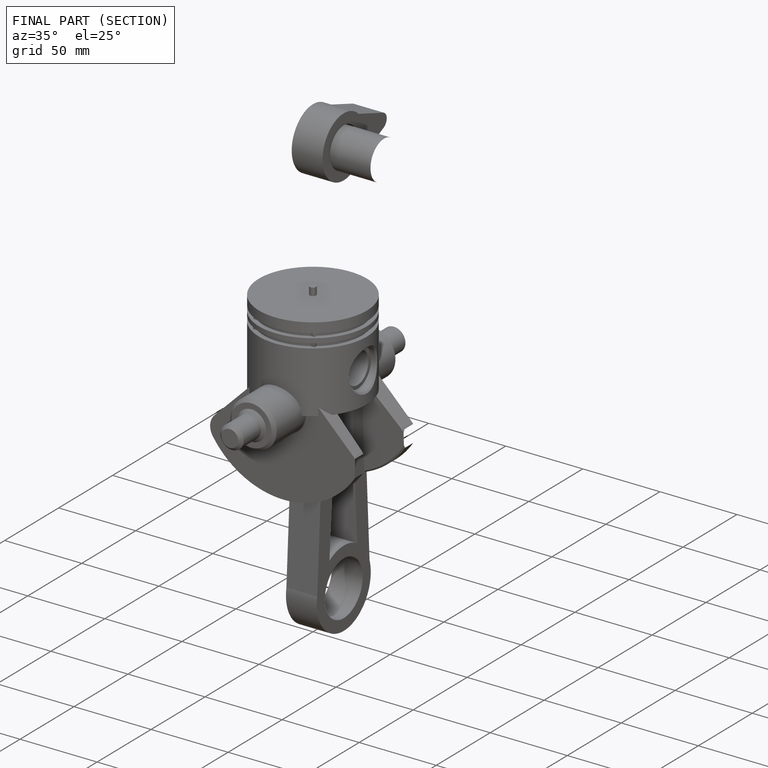
[diagram: finished part — half-section view (interior)]
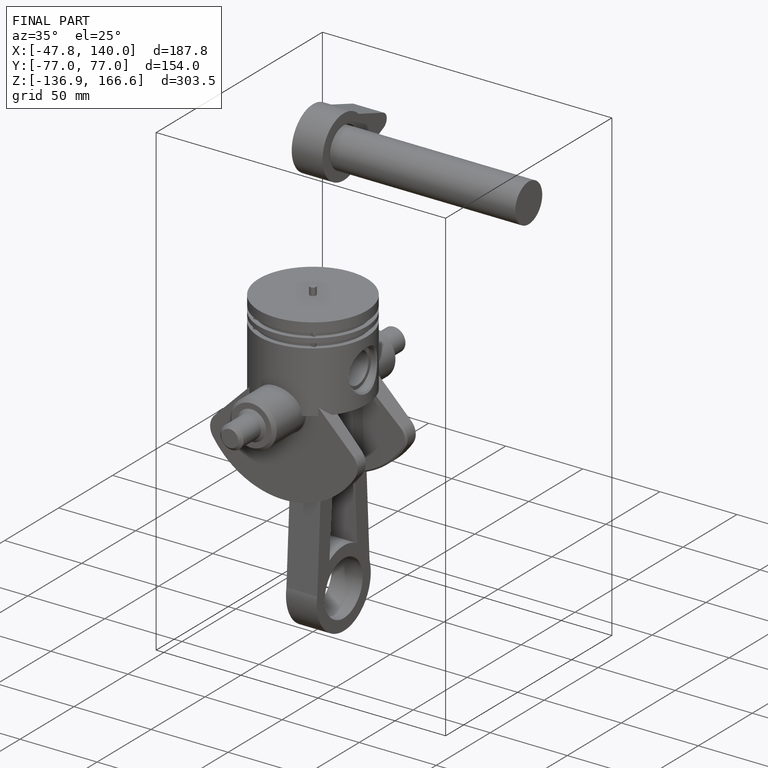
[diagram: finished part — iso view with bounding-box wireframe]
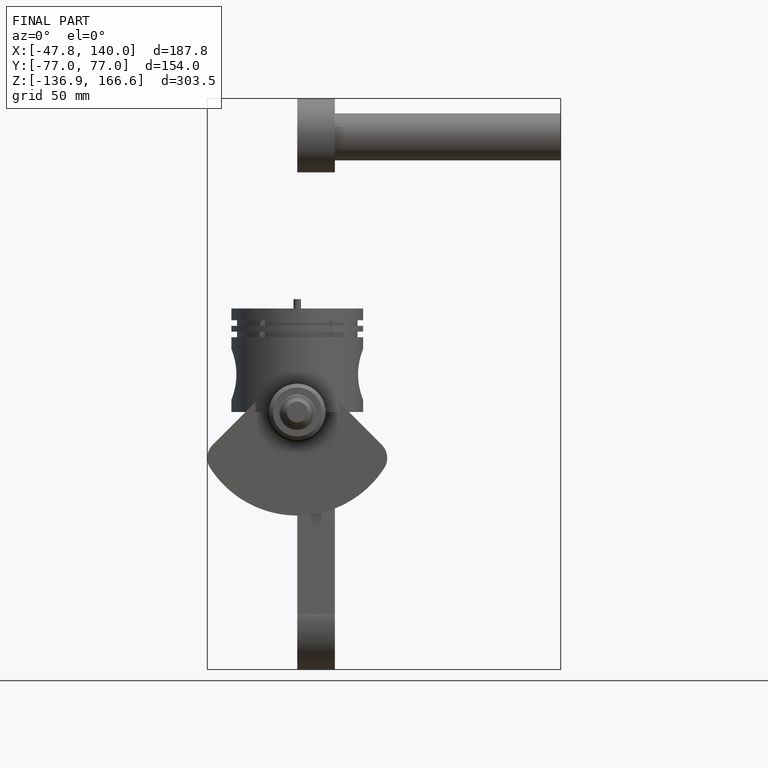
[diagram: finished part — front view with bounding-box wireframe]
